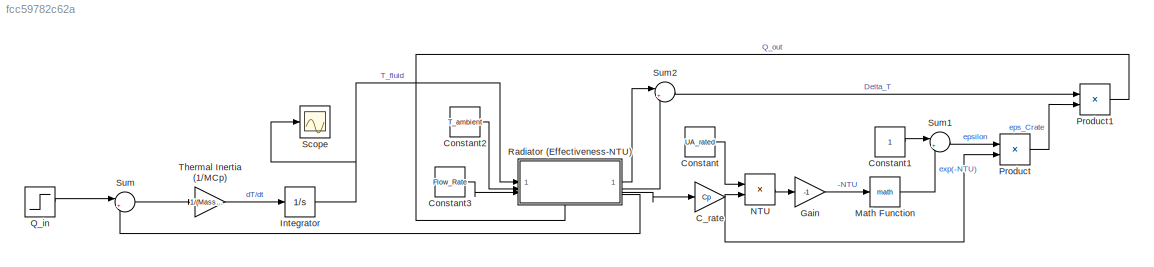
MODEL slx_fcc59782c62a
KIND model
CONFIG AbsTol = auto
CONFIG EnableMultiTasking = off
CONFIG FixedStep = auto
CONFIG MaxStep = auto
CONFIG MinStep = auto
CONFIG RelTol = 1e-3
CONFIG SampleTimeConstraint = Unconstrained
CONFIG SolverName = VariableStepAuto
CONFIG StartTime = 0.0
CONFIG StopTime = 3600
BLOCK [Gain] C_rate
  Gain = Cp
BLOCK [Constant] Constant
  Value = UA_rated
BLOCK [Constant] Constant1
BLOCK [Constant] Constant2
  Value = T_ambient
BLOCK [Constant] Constant3
  Value = Flow_Rate
BLOCK [Gain] Gain
  Gain = -1
BLOCK [Integrator] Integrator
  InitialCondition = T_init
BLOCK [Math] Math Function
BLOCK [Product] NTU
  Inputs = */
BLOCK [Product] Product
BLOCK [Product] Product1
BLOCK [Step] Q_in
  After = 1000
  SampleTime = 0
  Time = 10
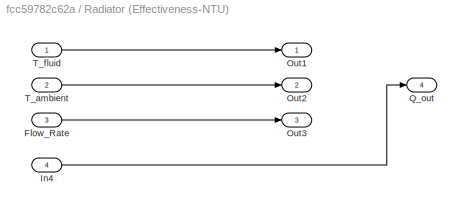
BLOCK [SubSystem] Radiator (Effectiveness-NTU)
  PortSchema = {"entries":[{"content":{"sides":[{"content":{"connectorIds":["In1","In2","In3"]},"type":"ConnectorPlacement.EquallySpacedRectSide","uuid":"763b49ba-e30a-4bf7-9101-0a483e23a5d2"},{"content":{"connectorIds":["Out1","Out2","Out3","Out4"],"side":"RIGHT"},"type":"ConnectorPlacement.EquallySpacedRectSide","uuid":"15db3555-d9f1-4d5e-8554-55ba6d53e958"},{"content":{"side":"TOP"},"type":"ConnectorPlacement...<+404ch>
BLOCK [Inport] Radiator (Effectiveness-NTU)/Flow_Rate
  Port = 3
BLOCK [Inport] Radiator (Effectiveness-NTU)/In4
  Port = 4
BLOCK [Outport] Radiator (Effectiveness-NTU)/Out1
BLOCK [Outport] Radiator (Effectiveness-NTU)/Out2
  Port = 2
BLOCK [Outport] Radiator (Effectiveness-NTU)/Out3
  Port = 3
BLOCK [Outport] Radiator (Effectiveness-NTU)/Q_out
  Port = 4
BLOCK [Inport] Radiator (Effectiveness-NTU)/T_ambient
  Port = 2
BLOCK [Inport] Radiator (Effectiveness-NTU)/T_fluid
BLOCK [Scope] Scope
  ActiveDisplayYMaximum = 33.332248468606117
  ActiveDisplayYMinimum = 24.074194614599321
  ContainerLayout = {"WindowBounds":[-9999,1562,1364,566]}
  Floating = off
  GraphicalSettings = {"Style":{"BackgroundColor":[0.12941176470588237,0.12941176470588237,0.12941176470588237],"AxesColor":[0.07058823529411765,0.07058823529411765,0.07058823529411765],"LabelsColor":[0.8509803921568627,0.8509803921568627,0.8509803921568627],"PreserveColors":false,"Visible":[true],"LineStyle":["-"],"LineWidth":[1.5],"BarWidth":[0.9],"LineColor":["auto"],"LineFaceAlpha":[1],"LineEdgeAlpha":[1],"Marker":...<+2023ch>
  MultipleDisplayCache = [{"MaxYLimMag":33.332248468606117,"MaxYLimReal":33.332248468606117,"MinYLimMag":24.074194614599321,"MinYLimReal":24.074194614599321,"PlotAsMagnitudePhase":false,"ShowGrid":true,"ShowLegend":false,"Title":"%<SignalLabel>","YLabel":""}]
  NumInputPorts = 1
  Visible = on
  WasSavedAsWebScope = on
  WindowPosition = [1025.000000,1.000000,342.000000,569.000000,]
BLOCK [Sum] Sum
  Inputs = |+-
BLOCK [Sum] Sum1
  Inputs = |+-
BLOCK [Sum] Sum2
  Inputs = |+-
BLOCK [Gain] Thermal Inertia (1//MCp)
  Gain = 1/(Mass*Cp)
NET C_rate:1 -> NTU:2, Product:2
LINE Constant1:1 -> Sum1:1
LINE Constant2:1 -> Radiator (Effectiveness-NTU):2
LINE Constant3:1 -> Radiator (Effectiveness-NTU):3
LINE Constant:1 -> NTU:1
LINE Gain:1 -> Math Function:1
NET Integrator:1 -> Radiator (Effectiveness-NTU):1, Scope:1
LINE Math Function:1 -> Sum1:2
LINE NTU:1 -> Gain:1
LINE Product1:1 -> Radiator (Effectiveness-NTU):4
LINE Product:1 -> Product1:2
LINE Q_in:1 -> Sum:1
LINE Radiator (Effectiveness-NTU)/Flow_Rate:1 -> Radiator (Effectiveness-NTU)/Out3:1
LINE Radiator (Effectiveness-NTU)/In4:1 -> Radiator (Effectiveness-NTU)/Q_out:1
LINE Radiator (Effectiveness-NTU)/T_ambient:1 -> Radiator (Effectiveness-NTU)/Out2:1
LINE Radiator (Effectiveness-NTU)/T_fluid:1 -> Radiator (Effectiveness-NTU)/Out1:1
LINE Radiator (Effectiveness-NTU):1 -> Sum2:1
LINE Radiator (Effectiveness-NTU):2 -> Sum2:2
LINE Radiator (Effectiveness-NTU):3 -> C_rate:1
LINE Radiator (Effectiveness-NTU):4 -> Sum:2
LINE Sum1:1 -> Product:1
LINE Sum2:1 -> Product1:1
LINE Sum:1 -> Thermal Inertia (1//MCp):1
LINE Thermal Inertia (1//MCp):1 -> Integrator:1
note: NET lines group one-source signal fan-out (src -> all destinations, sorted); 1:1 wires keep LINE
